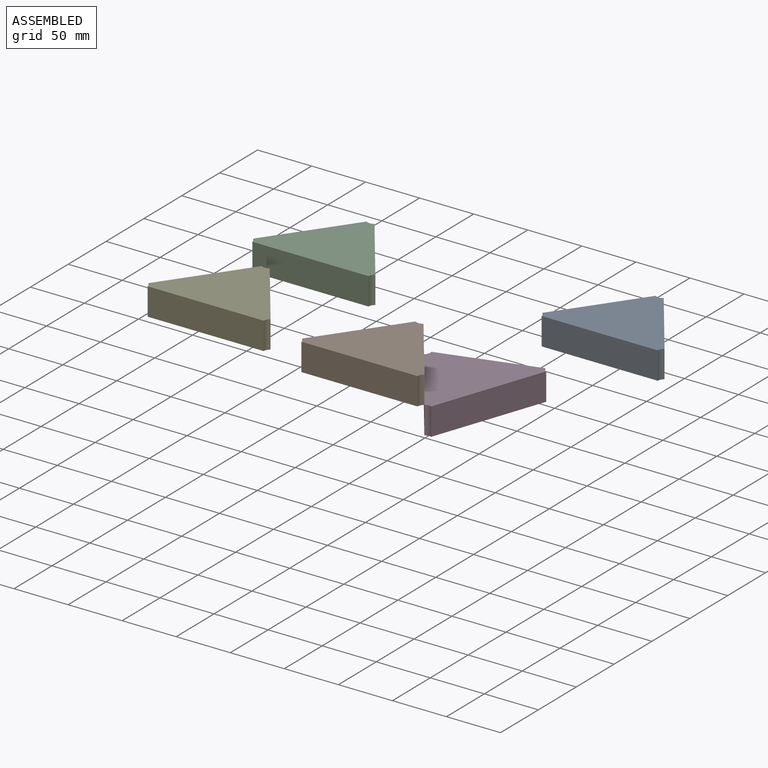
[diagram: assembled view]
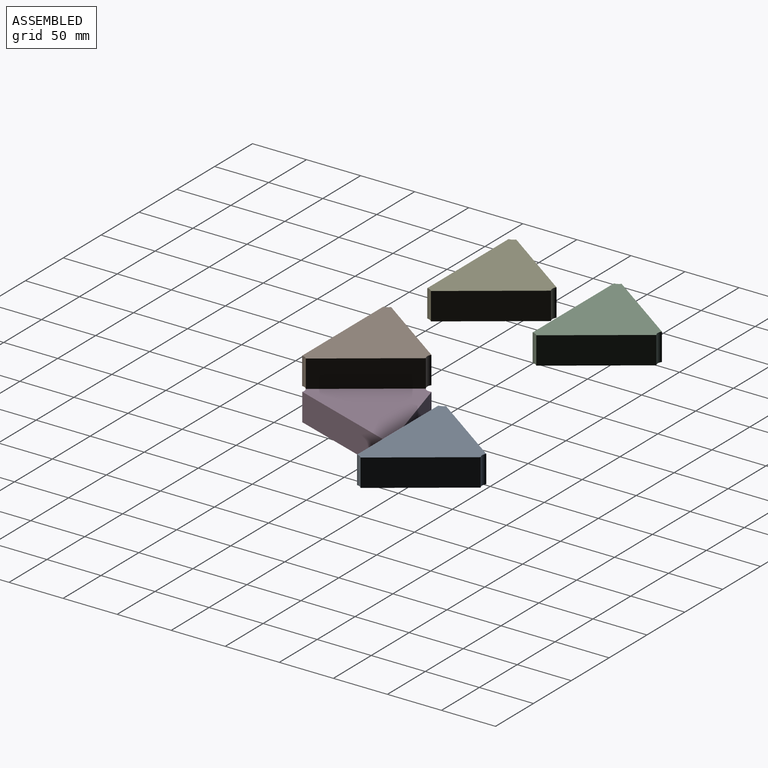
[diagram: assembled view, second angle]
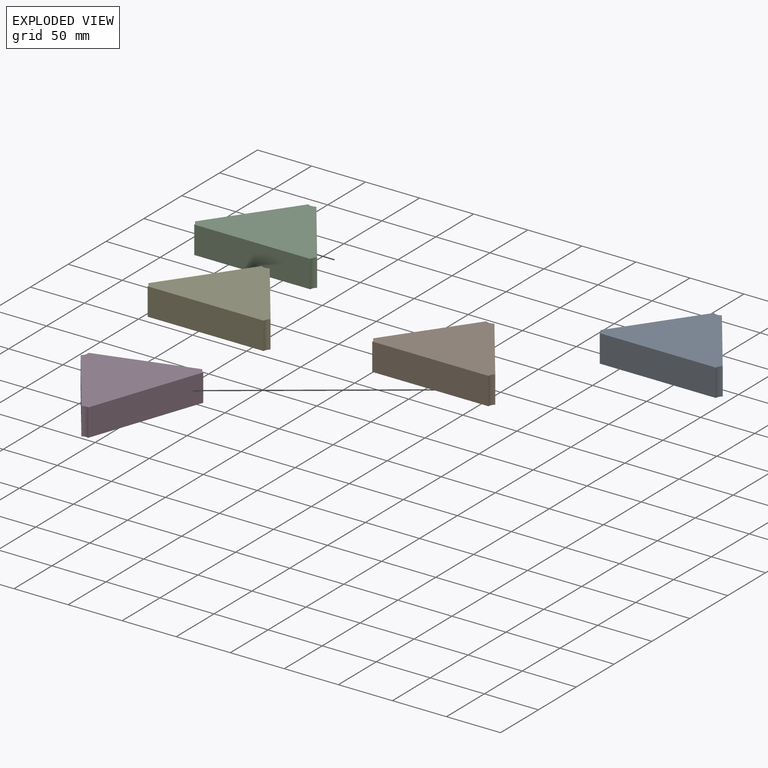
[diagram: exploded view]
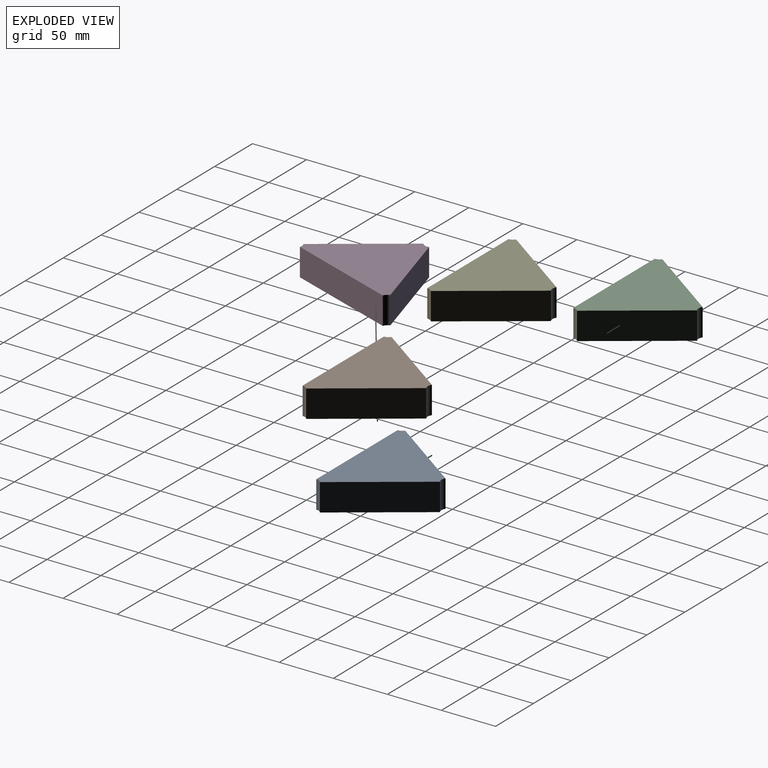
[diagram: exploded view, second angle]
ASSEMBLY  parts=5 mates=2
PART A: 8 faces, bbox 112.8x79.4x25.4 mm
  f0: plane 74.2x52.71mm, normal (-0.82,0.58,0), area 2311.8mm2, adj f1,f5,f6,f7
  f1: cylinder r=6.35mm len=25.4mm, axis (0,0,-1), area 153.7mm2, adj f0,f2,f6,f7
  f2: plane 107.42x25.4mm, normal (0,-1,0), area 2728.5mm2, adj f1,f3,f6,f7
  f3: cylinder r=6.35mm len=25.4mm, axis (0,0,-1), area 153.7mm2, adj f2,f4,f6,f7
  f4: plane 74.2x52.71mm, normal (0.82,0.58,0), area 2311.8mm2, adj f3,f5,f6,f7
  f5: cylinder r=6.35mm len=25.4mm, axis (0,0,-1), area 199.2mm2, adj f0,f4,f6,f7
  f6: plane 112.77x79.38mm, normal (0,0,1), area 5015.2mm2, adj f0,f1,f2,f3,f4,f5
  f7: plane 112.77x79.38mm, normal (0,0,-1), area 5015.2mm2, adj f0,f1,f2,f3,f4,f5
PART B: same geometry as A
PART C: same geometry as A
PART D: same geometry as A
PART E: same geometry as A
PLACE A t=(41.61,85.6,-12.7)mm
PLACE B t=(-83.62,-52.84,-14.8)mm
PLACE C t=(-214.22,68.93,-12.7)mm
PLACE D rot(axis=(0,0,1),70.8deg) t=(36.5,-52.84,-40.2)mm
PLACE E t=(-233.46,-42,-12.7)mm
MATE cylindrical B.f5 <-> D.f5  axis (0,0,-1) through (-23.56,31.72,10.6)mm
MATE planar D.f0 <-> B.f4  axis (-0.82,-0.58,0) through (32.82,-47.66,-14.8)mm
